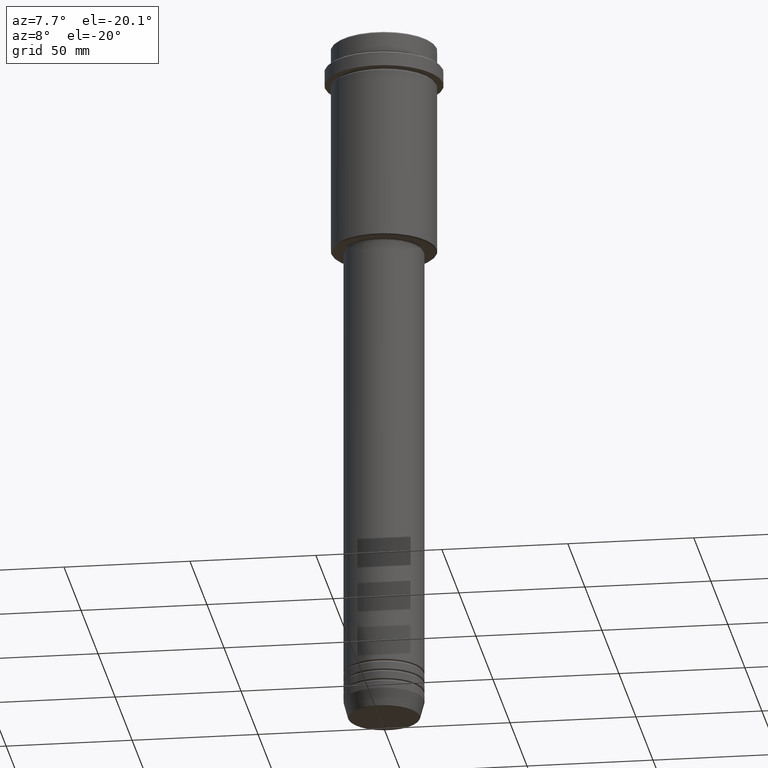
[diagram: clean part render]
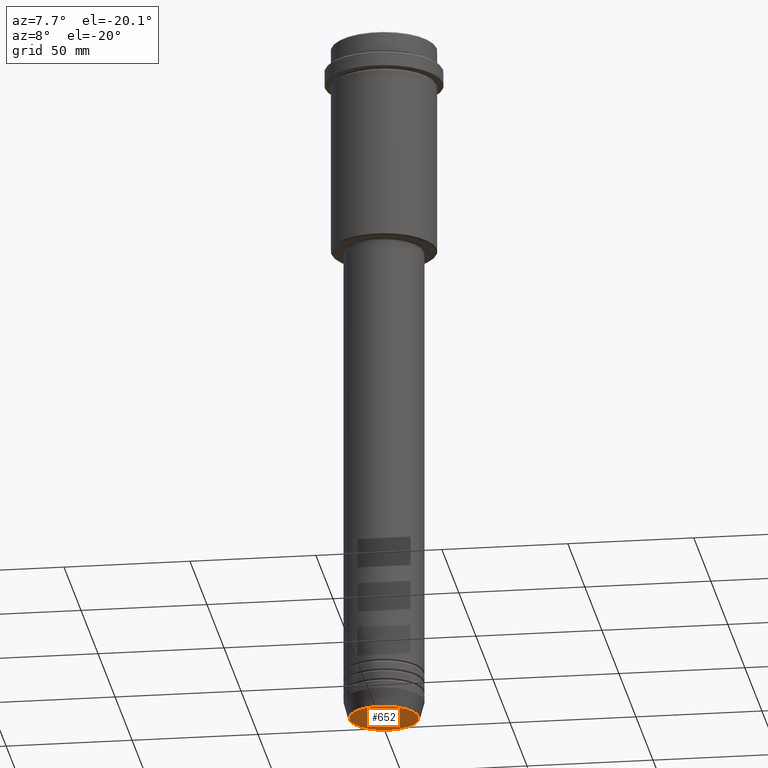
[diagram: same view with one face highlighted and labeled with its STEP entity id]
A machine part, auxiliary view. The second image highlights one B-rep face of the part: STEP entity #652.
In plain terms, the highlighted planar face has unit normal (0, -0, 1).
Its self-contained STEP definition (entity closure, byte-faithful):
#30 = AXIS2_PLACEMENT_3D ( 'NONE', #1046, #717, #58 ) ;
#58 = DIRECTION ( 'NONE',  ( 1.000000000000000000, 0.000000000000000000, 0.000000000000000000 ) ) ;
#107 = CARTESIAN_POINT ( 'NONE',  ( -13.74069215899265828, 1.712322416342415986E-15, -280.0000000000000000 ) ) ;
#125 = FACE_OUTER_BOUND ( 'NONE', #886, .T. ) ;
#239 = CARTESIAN_POINT ( 'NONE',  ( 0.000000000000000000, 0.000000000000000000, -280.0000000000000000 ) ) ;
#497 = DIRECTION ( 'NONE',  ( 1.000000000000000000, 0.000000000000000000, 0.000000000000000000 ) ) ;
#552 = CARTESIAN_POINT ( 'NONE',  ( 13.74069215899265828, 0.000000000000000000, -280.0000000000000000 ) ) ;
#560 = VERTEX_POINT ( 'NONE', #107 ) ;
#652 = ADVANCED_FACE ( 'NONE', ( #125 ), #1321, .F. ) ;
#669 = CIRCLE ( 'NONE', #746, 13.74069215899265828 ) ;
#684 = CARTESIAN_POINT ( 'NONE',  ( 0.000000000000000000, 0.000000000000000000, -280.0000000000000000 ) ) ;
#717 = DIRECTION ( 'NONE',  ( 0.000000000000000000, 0.000000000000000000, -1.000000000000000000 ) ) ;
#746 = AXIS2_PLACEMENT_3D ( 'NONE', #239, #1030, #497 ) ;
#886 = EDGE_LOOP ( 'NONE', ( #1270, #1050 ) ) ;
#1030 = DIRECTION ( 'NONE',  ( 0.000000000000000000, 0.000000000000000000, -1.000000000000000000 ) ) ;
#1041 = VERTEX_POINT ( 'NONE', #552 ) ;
#1046 = CARTESIAN_POINT ( 'NONE',  ( 0.000000000000000000, 0.000000000000000000, -280.0000000000000000 ) ) ;
#1050 = ORIENTED_EDGE ( 'NONE', *, *, #1246, .T. ) ;
#1114 = DIRECTION ( 'NONE',  ( 0.000000000000000000, -0.000000000000000000, 1.000000000000000000 ) ) ;
#1162 = AXIS2_PLACEMENT_3D ( 'NONE', #684, #1114, #1337 ) ;
#1246 = EDGE_CURVE ( 'NONE', #560, #1041, #1405, .T. ) ;
#1270 = ORIENTED_EDGE ( 'NONE', *, *, #1286, .T. ) ;
#1286 = EDGE_CURVE ( 'NONE', #1041, #560, #669, .T. ) ;
#1321 = PLANE ( 'NONE',  #1162 ) ;
#1337 = DIRECTION ( 'NONE',  ( 1.000000000000000000, 0.000000000000000000, 0.000000000000000000 ) ) ;
#1405 = CIRCLE ( 'NONE', #30, 13.74069215899265828 ) ;